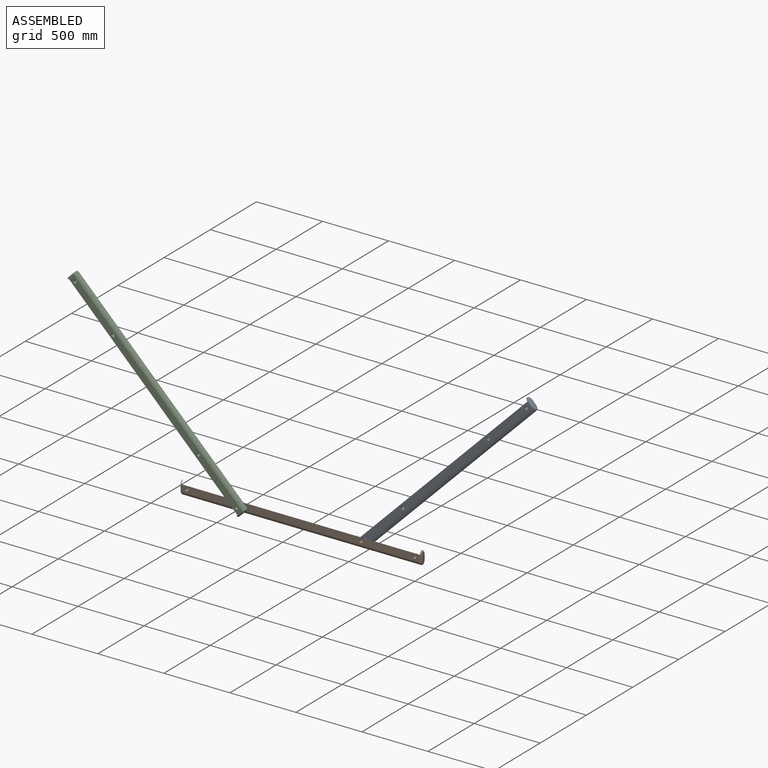
[diagram: assembled view]
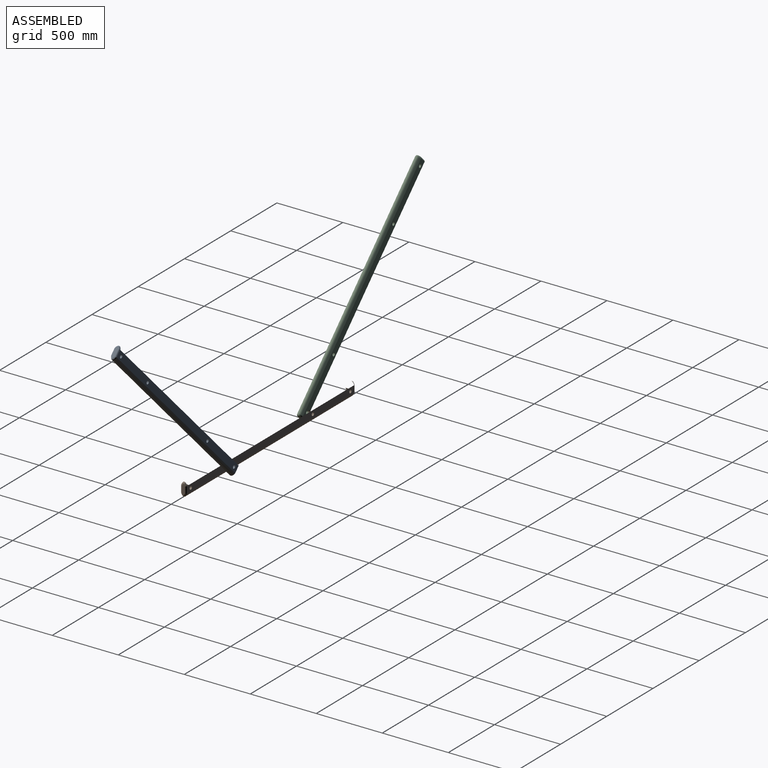
[diagram: assembled view, second angle]
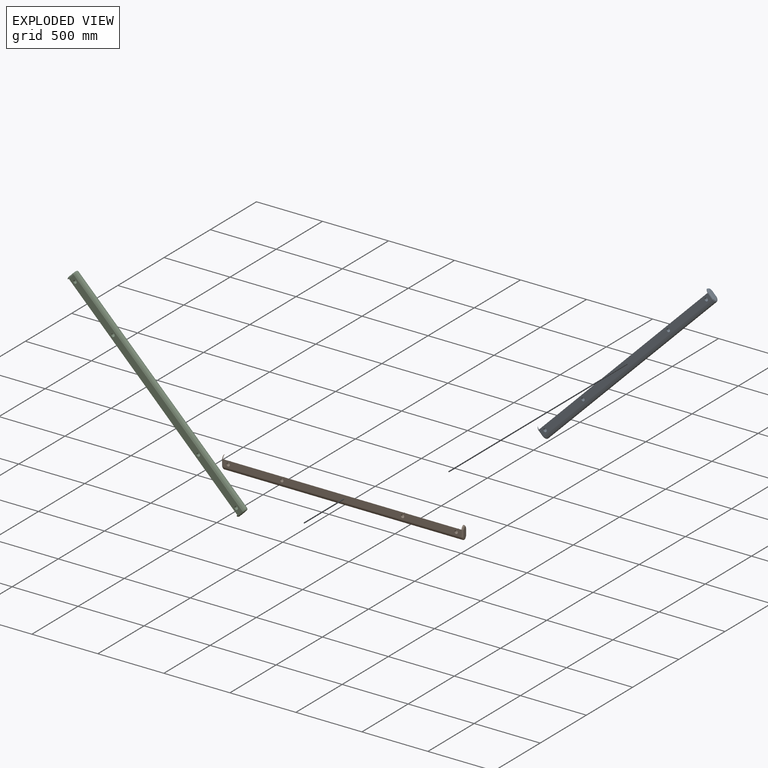
[diagram: exploded view]
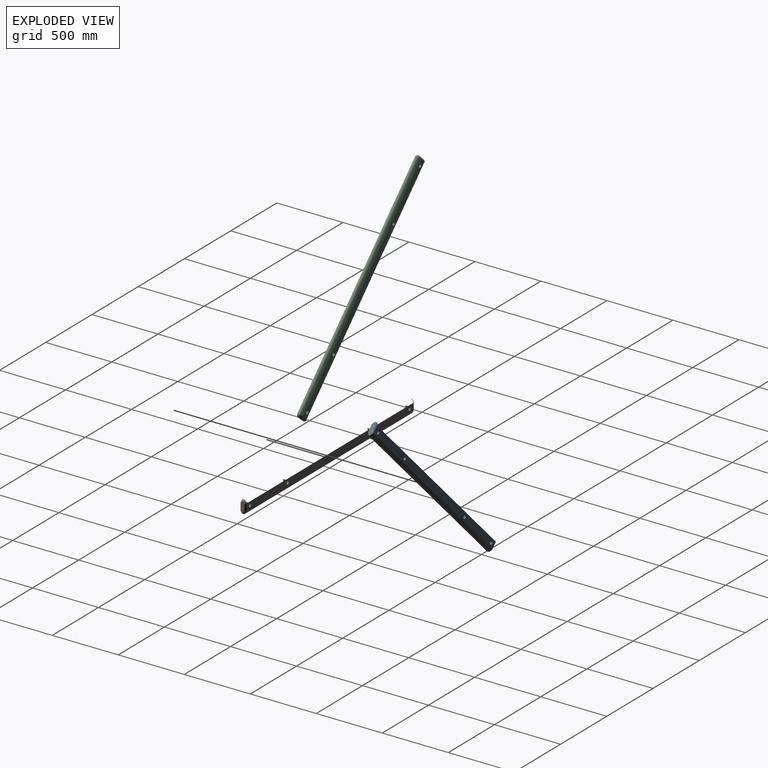
[diagram: exploded view, second angle]
ASSEMBLY  parts=3 mates=2
PART A: 18 faces, bbox 1828.8x45.7x101.6 mm
  f0: plane 1805.94x53.52mm, normal (0,1,0), area 94629.1mm2, adj f1,f3,f6,f10,f14,f15,f16,f17
  f1: extruded ~1805.94x43.25mm, area 124654.2mm2, adj f0,f2,f7,f11
  f2: plane 1805.94x53.06mm, normal (0,-1,0), area 93798.8mm2, adj f1,f3,f9,f13,f14,f15,f16,f17
  f3: extruded ~1805.94x43.25mm, area 124654.2mm2, adj f0,f2,f8,f12
  f4: plane 78.74x20.4mm, normal (-1,0,0), area 1396mm2, adj f10,f11,f12,f13
  f5: plane 78.74x20.4mm, normal (1,0,0), area 1396mm2, adj f6,f7,f8,f9
  f6: cylinder r=11.43mm len=53.52mm, axis (0,0,1), area 928.4mm2, adj f0,f5,f7,f8
  f7: bspline ~44.72x30.48mm, area 1025.7mm2, adj f1,f5,f6,f9
  f8: bspline ~45.04x31.95mm, area 1019.3mm2, adj f3,f5,f6,f9
  f9: cylinder r=11.43mm len=53.06mm, axis (0,0,-1), area 920.6mm2, adj f2,f5,f7,f8
  f10: cylinder r=11.43mm len=53.52mm, axis (0,0,-1), area 928.4mm2, adj f0,f4,f11,f12
  f11: bspline ~44.2x29.19mm, area 1019.4mm2, adj f1,f4,f10,f13
  f12: bspline ~44.46x29.71mm, area 1025.8mm2, adj f3,f4,f10,f13
  f13: cylinder r=11.43mm len=53.06mm, axis (0,0,1), area 920.6mm2, adj f2,f4,f11,f12
  f14: cylinder r=12.7mm len=43.25mm, axis (0,-1,0), area 3451.3mm2, adj f0,f2
  f15: cylinder r=12.7mm len=43.25mm, axis (0,-1,0), area 3451.3mm2, adj f0,f2
  f16: cylinder r=12.7mm len=43.25mm, axis (0,-1,0), area 3451.3mm2, adj f0,f2
  f17: cylinder r=12.7mm len=43.25mm, axis (0,-1,0), area 3451.3mm2, adj f0,f2
PART B: same geometry as A
PART C: same geometry as A
PLACE A rot(axis=(0,-1,0),45deg) t=(905.95,43.25,1301.11)mm
PLACE B at identity fixed
PLACE C rot(axis=(0,-1,0),135deg) t=(-2522.92,-43.25,1512.93)mm
MATE revolute C.f17 <-> B.f14  axis (0,1,0) through (-1371.6,70.7,149.78)mm
MATE revolute A.f17 <-> B.f16  axis (0,-1,0) through (-457.2,113.95,149.78)mm
